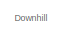
[diagram: root canvas - part 1/3, top right region]
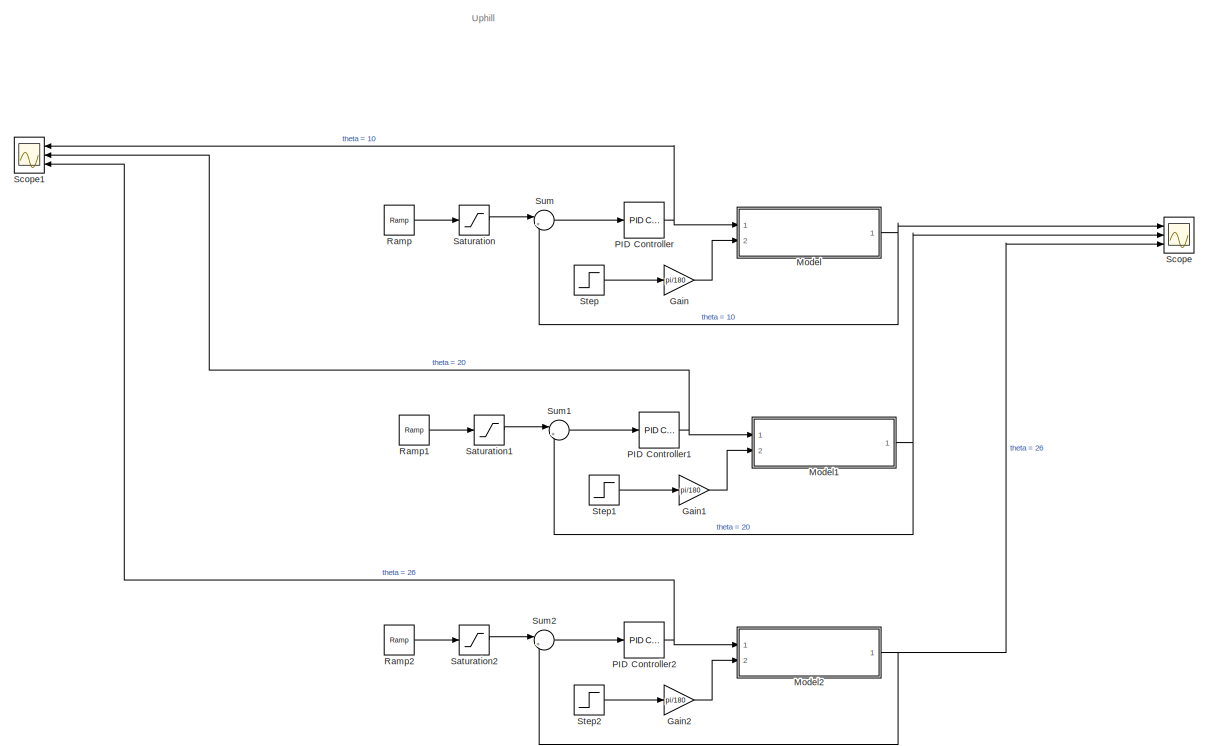
[diagram: root canvas - part 2/3, middle left region]
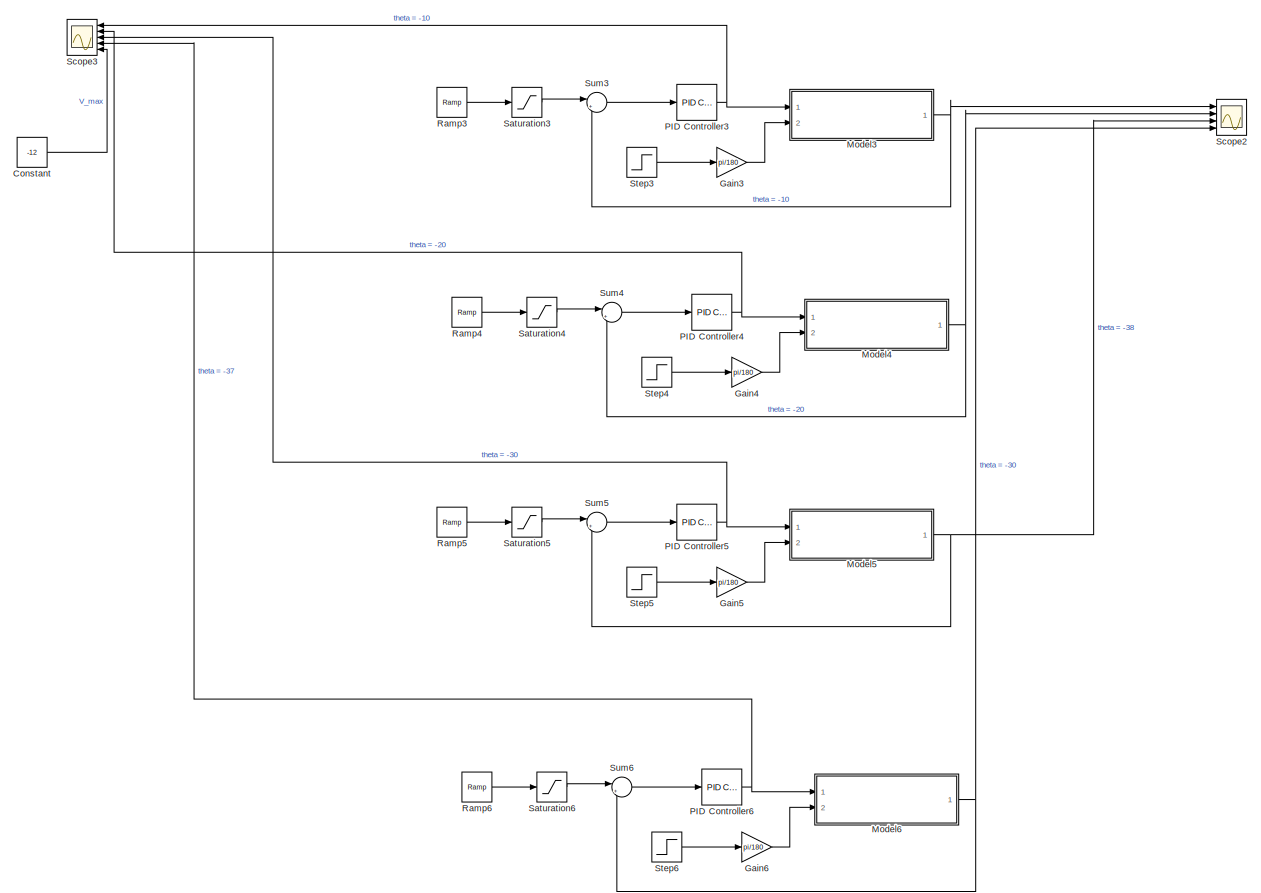
[diagram: root canvas - part 3/3, right side, full height]
MODEL slx_9544932c5d79
KIND model
CONFIG AbsTol = auto
CONFIG EnableMultiTasking = off
CONFIG FixedStep = auto
CONFIG MaxStep = auto
CONFIG MinStep = auto
CONFIG RelTol = 1e-3
CONFIG SampleTimeConstraint = Unconstrained
CONFIG SolverName = VariableStepAuto
CONFIG StartTime = 0.0
CONFIG StopTime = 10
BLOCK [Constant] Constant
  Value = -12
BLOCK [Gain] Gain
  Gain = pi/180
BLOCK [Gain] Gain1
  Gain = pi/180
BLOCK [Gain] Gain2
  Gain = pi/180
BLOCK [Gain] Gain3
  Gain = pi/180
BLOCK [Gain] Gain4
  Gain = pi/180
BLOCK [Gain] Gain5
  Gain = pi/180
BLOCK [Gain] Gain6
  Gain = pi/180
BLOCK [ModelReference] Model
  ModelNameDialog = motor_cardynamic.slx
  ModelReferenceVersion = 1.10
  Ports = [2, 1]
BLOCK [ModelReference] Model1
  ModelNameDialog = motor_cardynamic.slx
  ModelReferenceVersion = 1.10
  Ports = [2, 1]
BLOCK [ModelReference] Model2
  ModelNameDialog = motor_cardynamic.slx
  ModelReferenceVersion = 1.10
  Ports = [2, 1]
BLOCK [ModelReference] Model3
  ModelNameDialog = motor_cardynamic.slx
  ModelReferenceVersion = 1.10
  Ports = [2, 1]
BLOCK [ModelReference] Model4
  ModelNameDialog = motor_cardynamic.slx
  ModelReferenceVersion = 1.10
  Ports = [2, 1]
BLOCK [ModelReference] Model5
  ModelNameDialog = motor_cardynamic.slx
  ModelReferenceVersion = 1.10
  Ports = [2, 1]
BLOCK [ModelReference] Model6
  ModelNameDialog = motor_cardynamic.slx
  ModelReferenceVersion = 1.10
  Ports = [2, 1]
BLOCK [Reference] PID Controller  REF=pid_lib/PID Controller
  Ports = [1, 1]
  SourceBlock = pid_lib/PID Controller
  SourceProductBaseCode = SL
  SourceType = PID 1dof
BLOCK [Reference] PID Controller1  REF=pid_lib/PID Controller
  Ports = [1, 1]
  SourceBlock = pid_lib/PID Controller
  SourceProductBaseCode = SL
  SourceType = PID 1dof
BLOCK [Reference] PID Controller2  REF=pid_lib/PID Controller
  Ports = [1, 1]
  SourceBlock = pid_lib/PID Controller
  SourceProductBaseCode = SL
  SourceType = PID 1dof
BLOCK [Reference] PID Controller3  REF=pid_lib/PID Controller
  Ports = [1, 1]
  SourceBlock = pid_lib/PID Controller
  SourceProductBaseCode = SL
  SourceType = PID 1dof
BLOCK [Reference] PID Controller4  REF=pid_lib/PID Controller
  Ports = [1, 1]
  SourceBlock = pid_lib/PID Controller
  SourceProductBaseCode = SL
  SourceType = PID 1dof
BLOCK [Reference] PID Controller5  REF=pid_lib/PID Controller
  Ports = [1, 1]
  SourceBlock = pid_lib/PID Controller
  SourceProductBaseCode = SL
  SourceType = PID 1dof
BLOCK [Reference] PID Controller6  REF=pid_lib/PID Controller
  Ports = [1, 1]
  SourceBlock = pid_lib/PID Controller
  SourceProductBaseCode = SL
  SourceType = PID 1dof
BLOCK [Reference] Ramp  REF=simulink/Sources/Ramp
  Ports = [0, 1]
  SourceBlock = simulink/Sources/Ramp
  SourceProductBaseCode = SL
  SourceType = Ramp
BLOCK [Reference] Ramp1  REF=simulink/Sources/Ramp
  Ports = [0, 1]
  SourceBlock = simulink/Sources/Ramp
  SourceProductBaseCode = SL
  SourceType = Ramp
BLOCK [Reference] Ramp2  REF=simulink/Sources/Ramp
  Ports = [0, 1]
  SourceBlock = simulink/Sources/Ramp
  SourceProductBaseCode = SL
  SourceType = Ramp
BLOCK [Reference] Ramp3  REF=simulink/Sources/Ramp
  Ports = [0, 1]
  SourceBlock = simulink/Sources/Ramp
  SourceProductBaseCode = SL
  SourceType = Ramp
BLOCK [Reference] Ramp4  REF=simulink/Sources/Ramp
  Ports = [0, 1]
  SourceBlock = simulink/Sources/Ramp
  SourceProductBaseCode = SL
  SourceType = Ramp
BLOCK [Reference] Ramp5  REF=simulink/Sources/Ramp
  Ports = [0, 1]
  SourceBlock = simulink/Sources/Ramp
  SourceProductBaseCode = SL
  SourceType = Ramp
BLOCK [Reference] Ramp6  REF=simulink/Sources/Ramp
  Ports = [0, 1]
  SourceBlock = simulink/Sources/Ramp
  SourceProductBaseCode = SL
  SourceType = Ramp
BLOCK [Saturate] Saturation
  LowerLimit = 0
  UpperLimit = 1
BLOCK [Saturate] Saturation1
  LowerLimit = 0
  UpperLimit = 1
BLOCK [Saturate] Saturation2
  LowerLimit = 0
  UpperLimit = 1
BLOCK [Saturate] Saturation3
  LowerLimit = 0
  UpperLimit = 1
BLOCK [Saturate] Saturation4
  LowerLimit = 0
  UpperLimit = 1
BLOCK [Saturate] Saturation5
  LowerLimit = 0
  UpperLimit = 1
BLOCK [Saturate] Saturation6
  LowerLimit = 0
  UpperLimit = 1
BLOCK [Scope] Scope
  Floating = off
  NumInputPorts = 3
  Ports = [3]
  ScopeSpecificationString = Simulink.scopes.TimeScopeBlockCfg('CurrentConfiguration', extmgr.ConfigurationSet(extmgr.Configuration('Core','General UI',true),extmgr.Configuration('Core','Source UI',true),extmgr.Configuration('Sources','WiredSimulink',true),extmgr.Configuration('Visuals','Time Domain',true,'SerializedDisplays',{struct('MinYLimReal','-0.1375','MaxYLimReal','1.23752','YLabelReal','','MinYLimMag','0.00000','MaxYL...<+1381ch>
BLOCK [Scope] Scope1
  Floating = off
  NumInputPorts = 3
  Ports = [3]
  ScopeSpecificationString = Simulink.scopes.TimeScopeBlockCfg('CurrentConfiguration', extmgr.ConfigurationSet(extmgr.Configuration('Core','General UI',true),extmgr.Configuration('Core','Source UI',true),extmgr.Configuration('Sources','WiredSimulink',true,'DataLoggingVariableName','ScopeData1'),extmgr.Configuration('Visuals','Time Domain',true,'SerializedDisplays',{struct('MinYLimReal','-4.40201','MaxYLimReal','13.92699','YLa...<+1496ch>
BLOCK [Scope] Scope2
  Floating = off
  NumInputPorts = 4
  Ports = [4]
  ScopeSpecificationString = Simulink.scopes.TimeScopeBlockCfg('CurrentConfiguration', extmgr.ConfigurationSet(extmgr.Configuration('Core','General UI',true),extmgr.Configuration('Core','Source UI',true),extmgr.Configuration('Sources','WiredSimulink',true,'DataLoggingVariableName','ScopeData2'),extmgr.Configuration('Visuals','Time Domain',true,'SerializedDisplays',{struct('MinYLimReal','-0.20896','MaxYLimReal','1.8806','YLabe...<+1479ch>
BLOCK [Scope] Scope3
  Floating = off
  NumInputPorts = 5
  Ports = [5]
  ScopeSpecificationString = Simulink.scopes.TimeScopeBlockCfg('CurrentConfiguration', extmgr.ConfigurationSet(extmgr.Configuration('Core','General UI',true),extmgr.Configuration('Core','Source UI',true),extmgr.Configuration('Sources','WiredSimulink',true,'DataLoggingVariableName','ScopeData3'),extmgr.Configuration('Visuals','Time Domain',true,'SerializedDisplays',{struct('MinYLimReal','-15.87612','MaxYLimReal','14.72466','YL...<+1523ch>
BLOCK [Step] Step
  After = 10
  SampleTime = 0
  Time = 5
BLOCK [Step] Step1
  After = 20
  SampleTime = 0
  Time = 5
BLOCK [Step] Step2
  After = 26
  SampleTime = 0
  Time = 5
BLOCK [Step] Step3
  After = -10
  SampleTime = 0
  Time = 5
BLOCK [Step] Step4
  After = -20
  SampleTime = 0
  Time = 5
BLOCK [Step] Step5
  After = -30
  SampleTime = 0
  Time = 5
BLOCK [Step] Step6
  After = -37
  SampleTime = 0
  Time = 5
BLOCK [Sum] Sum
  Inputs = |+-
  Ports = [2, 1]
BLOCK [Sum] Sum1
  Inputs = |+-
  Ports = [2, 1]
BLOCK [Sum] Sum2
  Inputs = |+-
  Ports = [2, 1]
BLOCK [Sum] Sum3
  Inputs = |+-
  Ports = [2, 1]
BLOCK [Sum] Sum4
  Inputs = |+-
  Ports = [2, 1]
BLOCK [Sum] Sum5
  Inputs = |+-
  Ports = [2, 1]
BLOCK [Sum] Sum6
  Inputs = |+-
  Ports = [2, 1]
ANNOTATION (root): Downhill
ANNOTATION (root): Uphill
LINE Constant:1 -> Scope3:5
LINE Gain1:1 -> Model1:2
LINE Gain2:1 -> Model2:2
LINE Gain3:1 -> Model3:2
LINE Gain4:1 -> Model4:2
LINE Gain5:1 -> Model5:2
LINE Gain6:1 -> Model6:2
LINE Gain:1 -> Model:2
NET Model1:1 -> Scope:2, Sum1:2
NET Model2:1 -> Scope:3, Sum2:2
NET Model3:1 -> Scope2:1, Sum3:2
NET Model4:1 -> Scope2:2, Sum4:2
NET Model5:1 -> Scope2:3, Sum5:2
NET Model6:1 -> Scope2:4, Sum6:2
NET Model:1 -> Scope:1, Sum:2
NET PID Controller1:1 -> Model1:1, Scope1:2
NET PID Controller2:1 -> Model2:1, Scope1:3
NET PID Controller3:1 -> Model3:1, Scope3:1
NET PID Controller4:1 -> Model4:1, Scope3:2
NET PID Controller5:1 -> Model5:1, Scope3:3
NET PID Controller6:1 -> Model6:1, Scope3:4
NET PID Controller:1 -> Model:1, Scope1:1
LINE Ramp1:1 -> Saturation1:1
LINE Ramp2:1 -> Saturation2:1
LINE Ramp3:1 -> Saturation3:1
LINE Ramp4:1 -> Saturation4:1
LINE Ramp5:1 -> Saturation5:1
LINE Ramp6:1 -> Saturation6:1
LINE Ramp:1 -> Saturation:1
LINE Saturation1:1 -> Sum1:1
LINE Saturation2:1 -> Sum2:1
LINE Saturation3:1 -> Sum3:1
LINE Saturation4:1 -> Sum4:1
LINE Saturation5:1 -> Sum5:1
LINE Saturation6:1 -> Sum6:1
LINE Saturation:1 -> Sum:1
LINE Step1:1 -> Gain1:1
LINE Step2:1 -> Gain2:1
LINE Step3:1 -> Gain3:1
LINE Step4:1 -> Gain4:1
LINE Step5:1 -> Gain5:1
LINE Step6:1 -> Gain6:1
LINE Step:1 -> Gain:1
LINE Sum1:1 -> PID Controller1:1
LINE Sum2:1 -> PID Controller2:1
LINE Sum3:1 -> PID Controller3:1
LINE Sum4:1 -> PID Controller4:1
LINE Sum5:1 -> PID Controller5:1
LINE Sum6:1 -> PID Controller6:1
LINE Sum:1 -> PID Controller:1
note: NET lines group one-source signal fan-out (src -> all destinations, sorted); 1:1 wires keep LINE
